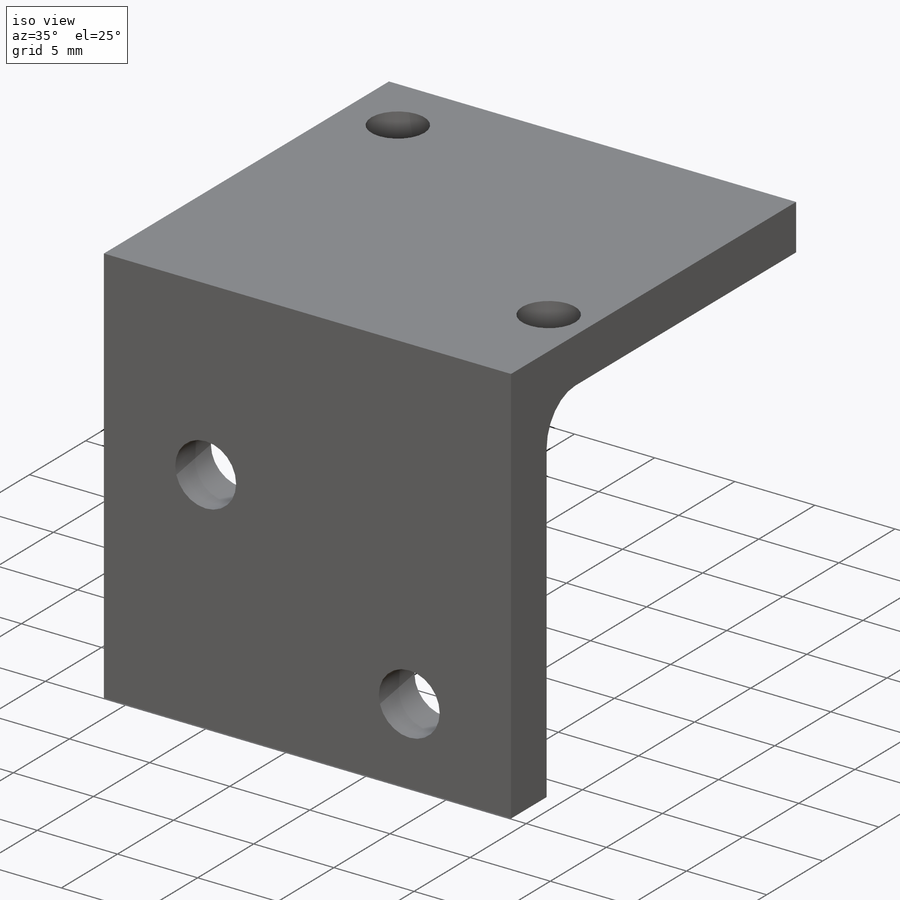
[diagram: iso view]
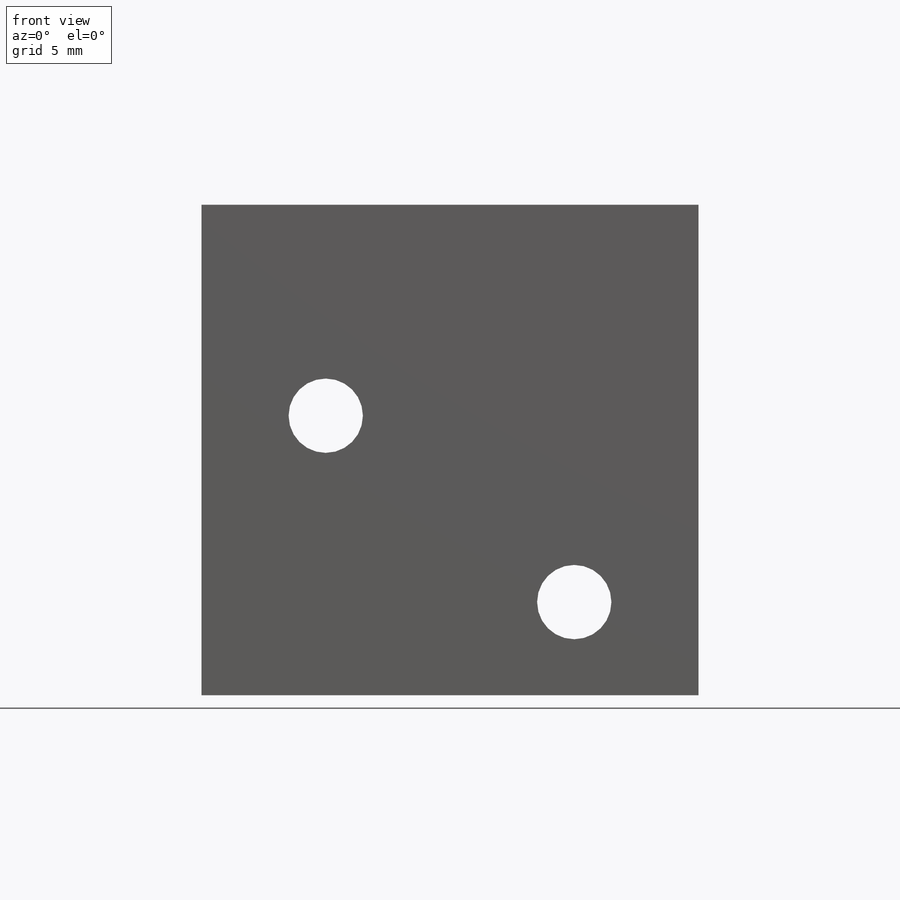
[diagram: front view]
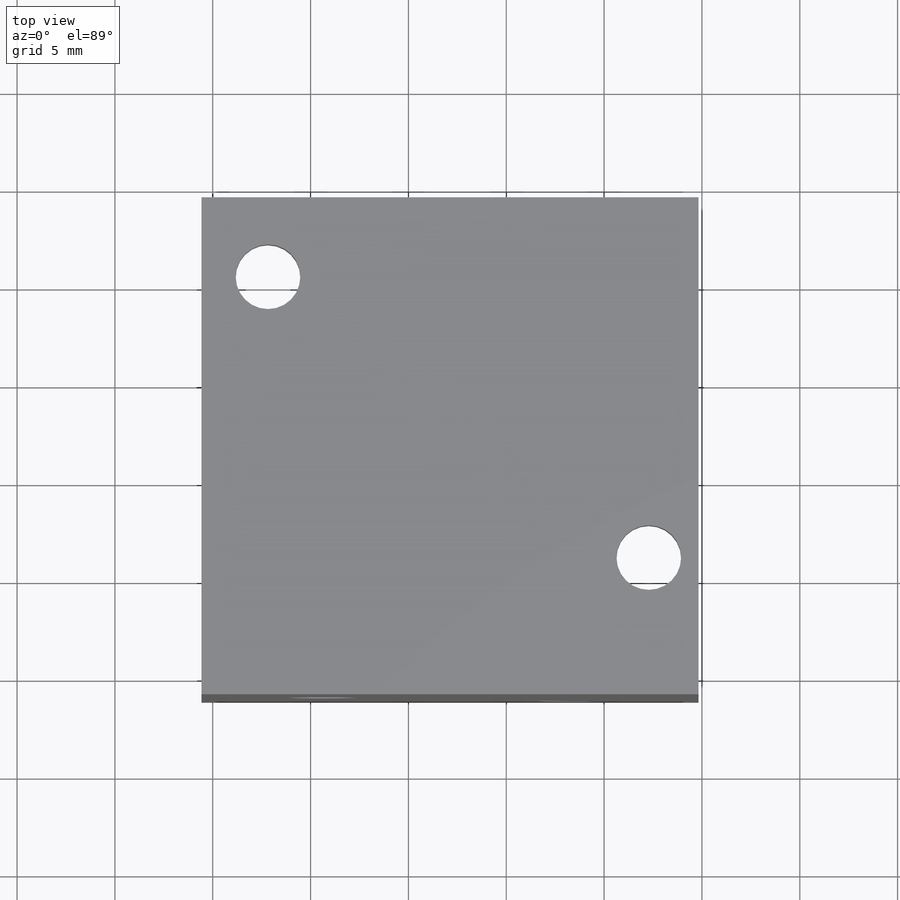
[diagram: top view]
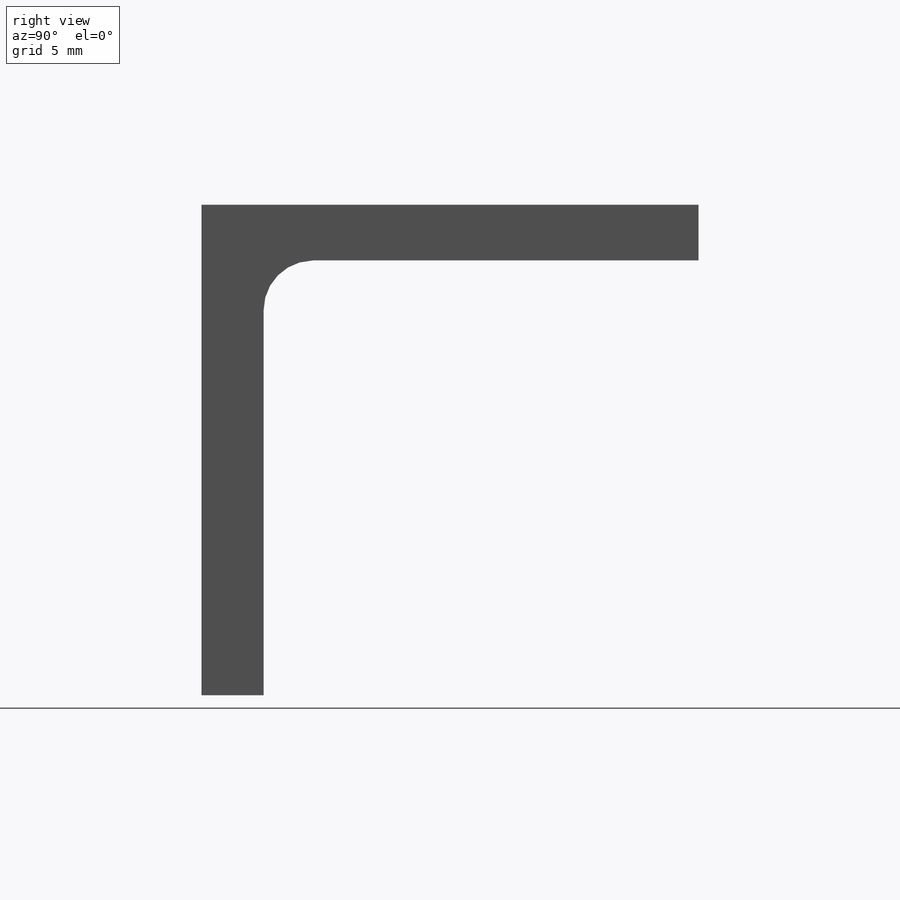
[diagram: right view]
SOLIDWORKS PART (.sldprt)
format: sldprt  version: not decoded by parser v0  size: 208,896 bytes
history: native  units: mm
features: sketch x4, extrude x2, material x1, fillet x1, hole x1 (+13 scaffold rows collapsed)
feature tree (22):
  scaffold x13  (default folders/planes/origin — collapsed)
  material  "Material <not specified>"
  sketch  "Sketch2"  dims[c1.D3=3.302mm c1.D8=3.302mm c1.D7=3.302mm c1.D1=15.875mm c1.D2=25.4mm c1.D4=3.175mm c1.D5=2.54mm c1.D6=22.225mm c2.D7=3.175mm c2.D9=3.81mm c2.D10=~24.18008mm c2.D6=3.175mm c3.D7=25.4mm]
  extrude  "Boss-Extrude1"  Depth=2.8448mm
  sketch  "Sketch3"  dims[D1=3.175mm]
  extrude  "Boss-Extrude2"  Depth=22.225mm
  fillet  "Fillet1"  Radius=2.54mm
  hole  "#6 Clearance Hole1"  Diameter=3.7973mm Depth=12.7mm
  sketch  "3DSketch1"  dims[D1=4.7625mm D2=14.2875mm D3=6.35mm D4=6.35mm]
  sketch  "Sketch4"  dims[hole-wizard template sketch: 50 standard entries collapsed; hole parameters above]
decode coverage: 8 of 8 modeling features carry decoded parameters
note: ~ marks probable driven/reference dimensions
note: suppression state not decoded; provenance and decode notes live in map.json
